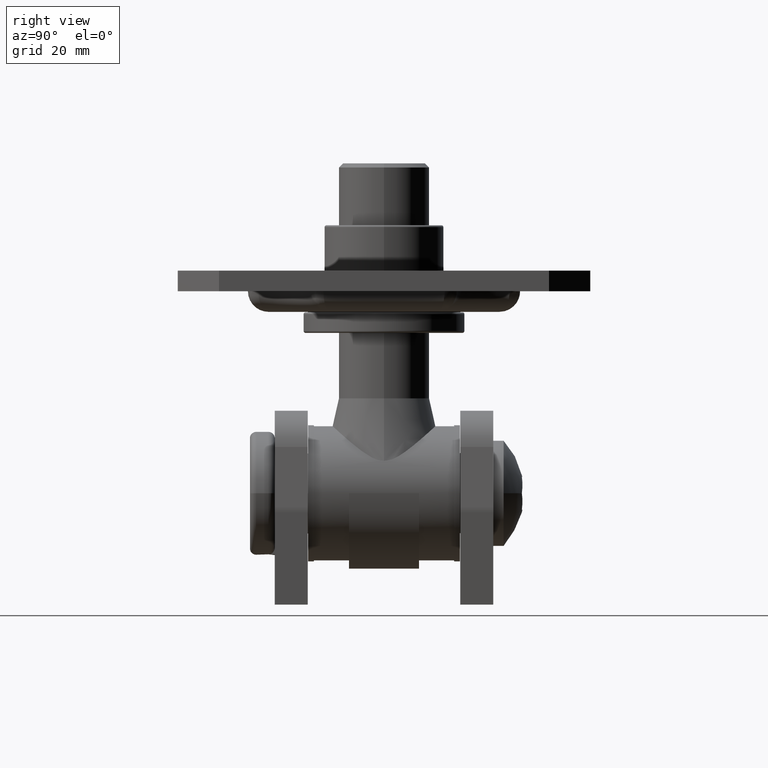
[diagram: clean part render]
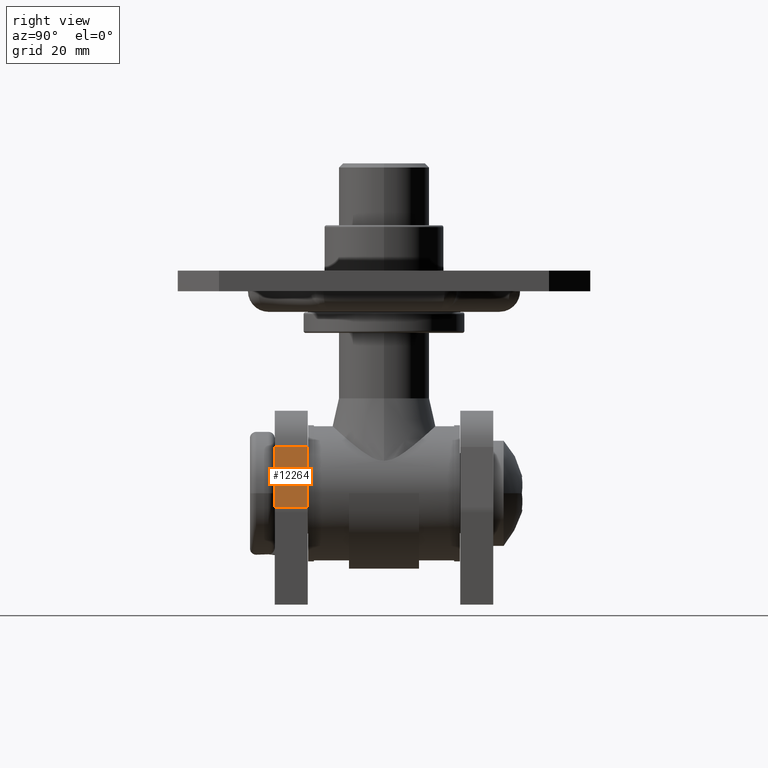
[diagram: same view with one face highlighted and labeled with its STEP entity id]
A machine part, right view. The second image highlights one B-rep face of the part: STEP entity #12264.
In plain terms, the highlighted planar face has unit normal (-0.9923, 0, -0.124).
Its self-contained STEP definition (entity closure, byte-faithful):
#98 = LINE ( 'NONE', #6456, #16767 ) ;
#914 = VERTEX_POINT ( 'NONE', #1020 ) ;
#1020 = CARTESIAN_POINT ( 'NONE',  ( 19.92277876713667700, -4.000000000000000000, 0.1177698629065827700 ) ) ;
#1069 = EDGE_CURVE ( 'NONE', #914, #9515, #11461, .T. ) ;
#2653 = LINE ( 'NONE', #16845, #11694 ) ;
#3954 = VERTEX_POINT ( 'NONE', #10065 ) ;
#4309 = ORIENTED_EDGE ( 'NONE', *, *, #9507, .T. ) ;
#6359 = FACE_OUTER_BOUND ( 'NONE', #9169, .T. ) ;
#6456 = CARTESIAN_POINT ( 'NONE',  ( 20.00000000000000000, -4.000000000000000000, -0.5000000000000038900 ) ) ;
#6608 = LINE ( 'NONE', #10909, #8697 ) ;
#7275 = DIRECTION ( 'NONE',  ( -0.1240347345892084000, 0.0000000000000000000, 0.9922778767136676300 ) ) ;
#7333 = DIRECTION ( 'NONE',  ( -0.9922778767136677400, 0.0000000000000000000, -0.1240347345892084100 ) ) ;
#7886 = ORIENTED_EDGE ( 'NONE', *, *, #1069, .T. ) ;
#8697 = VECTOR ( 'NONE', #16678, 1000.000000000000200 ) ;
#8751 = EDGE_CURVE ( 'NONE', #3954, #914, #98, .T. ) ;
#9169 = EDGE_LOOP ( 'NONE', ( #12440, #7886, #13949, #4309 ) ) ;
#9507 = EDGE_CURVE ( 'NONE', #16997, #3954, #2653, .T. ) ;
#9515 = VERTEX_POINT ( 'NONE', #15307 ) ;
#9862 = AXIS2_PLACEMENT_3D ( 'NONE', #14073, #7333, #7275 ) ;
#10065 = CARTESIAN_POINT ( 'NONE',  ( 18.09495658176349100, -4.000000000000000000, 14.74034734589208600 ) ) ;
#10382 = DIRECTION ( 'NONE',  ( 0.1240347345892083800, -0.0000000000000000000, -0.9922778767136676300 ) ) ;
#10487 = EDGE_CURVE ( 'NONE', #16997, #9515, #6608, .T. ) ;
#10909 = CARTESIAN_POINT ( 'NONE',  ( 20.00000000000000000, 4.000000000000000000, -0.5000000000000038900 ) ) ;
#10972 = CARTESIAN_POINT ( 'NONE',  ( 18.09495658176349100, 4.000000000000000000, 14.74034734589208600 ) ) ;
#11461 = LINE ( 'NONE', #16488, #14238 ) ;
#11694 = VECTOR ( 'NONE', #16593, 1000.000000000000000 ) ;
#12264 = ADVANCED_FACE ( 'NONE', ( #6359 ), #15456, .F. ) ;
#12440 = ORIENTED_EDGE ( 'NONE', *, *, #8751, .T. ) ;
#13648 = DIRECTION ( 'NONE',  ( -0.0000000000000000000, 1.000000000000000000, -0.0000000000000000000 ) ) ;
#13949 = ORIENTED_EDGE ( 'NONE', *, *, #10487, .F. ) ;
#14073 = CARTESIAN_POINT ( 'NONE',  ( 20.00000000000000000, 4.000000000000000000, -0.5000000000000038900 ) ) ;
#14238 = VECTOR ( 'NONE', #13648, 1000.000000000000000 ) ;
#15307 = CARTESIAN_POINT ( 'NONE',  ( 19.92277876713667700, 4.000000000000000000, 0.1177698629065827700 ) ) ;
#15456 = PLANE ( 'NONE',  #9862 ) ;
#16488 = CARTESIAN_POINT ( 'NONE',  ( 19.92277876713667700, 4.000000000000000000, 0.1177698629065827700 ) ) ;
#16593 = DIRECTION ( 'NONE',  ( 0.0000000000000000000, -1.000000000000000000, 0.0000000000000000000 ) ) ;
#16678 = DIRECTION ( 'NONE',  ( 0.1240347345892083800, -0.0000000000000000000, -0.9922778767136676300 ) ) ;
#16767 = VECTOR ( 'NONE', #10382, 1000.000000000000200 ) ;
#16845 = CARTESIAN_POINT ( 'NONE',  ( 18.09495658176349100, 4.000000000000000000, 14.74034734589208600 ) ) ;
#16997 = VERTEX_POINT ( 'NONE', #10972 ) ;